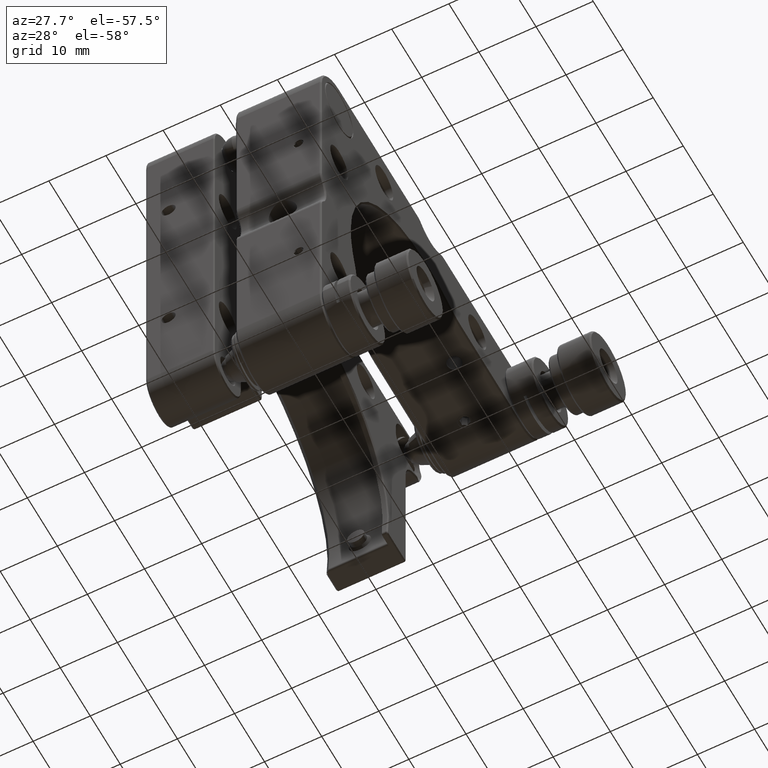
[diagram: clean part render]
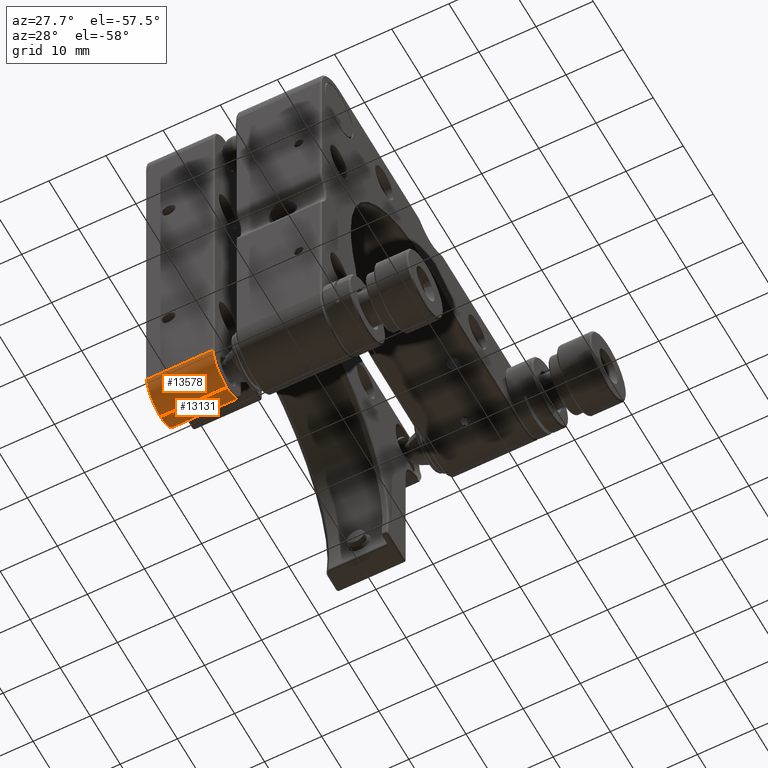
[diagram: same view with one multi-face feature highlighted, each face labeled with its STEP entity id]
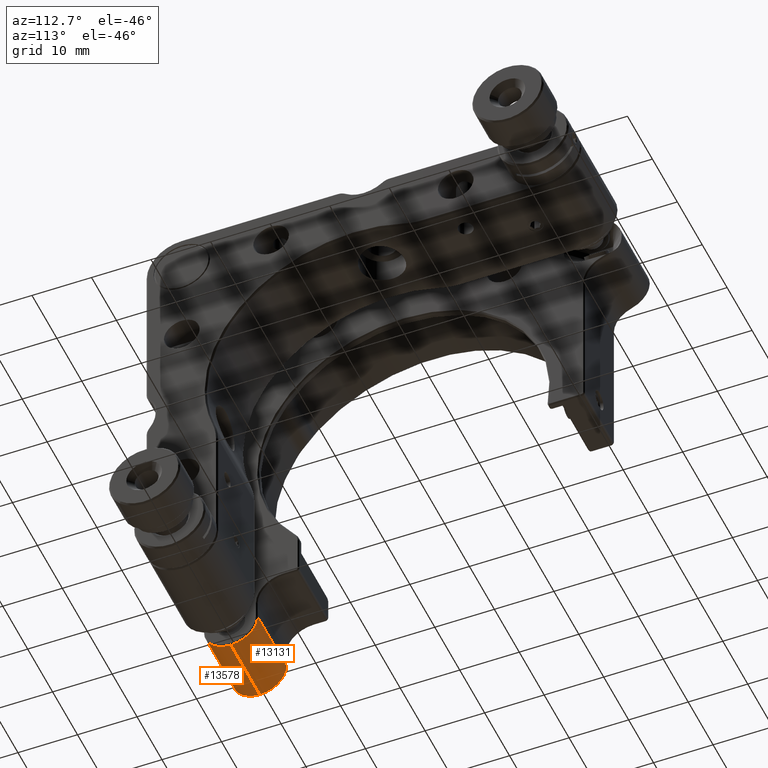
[diagram: same view with one multi-face feature highlighted, each face labeled with its STEP entity id]
A machine part, auxiliary view. The highlighted faces form ONE feature: a constant-radius fillet chain: 2 tangent blend faces with common blend radius 4.5 mm. The faces share edges in the B-rep.
A second angle (auxiliary view) of the same feature is appended — it is thin or edge-on in the first view.
Their STEP definitions:
[1] entity #13578 (Cylinder):
#245 = ORIENTED_EDGE ( 'NONE', *, *, #15132, .T. ) ;
#559 = ORIENTED_EDGE ( 'NONE', *, *, #12440, .T. ) ;
#671 = EDGE_LOOP ( 'NONE', ( #559, #5691, #245, #6888 ) ) ;
#1784 = CARTESIAN_POINT ( 'NONE',  ( -4.175619322914223552, -31.81707137695319432, -48.49999999999999289 ) ) ;
#1878 = DIRECTION ( 'NONE',  ( -1.000000000000000000, 0.000000000000000000, 0.000000000000000000 ) ) ;
#2489 = CIRCLE ( 'NONE', #13301, 4.499999999999997335 ) ;
#2893 = VERTEX_POINT ( 'NONE', #6276 ) ;
#3183 = CARTESIAN_POINT ( 'NONE',  ( -3.975619322914198506, -36.31707137695318721, -48.49999999999999289 ) ) ;
#3188 = AXIS2_PLACEMENT_3D ( 'NONE', #1784, #14888, #14663 ) ;
#3345 = LINE ( 'NONE', #3183, #6666 ) ;
#3696 = LINE ( 'NONE', #14193, #11894 ) ;
#5020 = CARTESIAN_POINT ( 'NONE',  ( -4.175619322914223552, -36.31707137695318721, -48.49999999999999289 ) ) ;
#5691 = ORIENTED_EDGE ( 'NONE', *, *, #12511, .F. ) ;
#5728 = VERTEX_POINT ( 'NONE', #8469 ) ;
#6276 = CARTESIAN_POINT ( 'NONE',  ( -15.77561932291418678, -36.31707137695318721, -48.49999999999999289 ) ) ;
#6476 = AXIS2_PLACEMENT_3D ( 'NONE', #12516, #1878, #11442 ) ;
#6666 = VECTOR ( 'NONE', #9044, 1000.000000000000000 ) ;
#6888 = ORIENTED_EDGE ( 'NONE', *, *, #11022, .F. ) ;
#8469 = CARTESIAN_POINT ( 'NONE',  ( -15.77561932291418678, -31.81707137695318721, -53.00000000000000000 ) ) ;
#9044 = DIRECTION ( 'NONE',  ( -1.000000000000000000, 0.000000000000000000, 0.000000000000000000 ) ) ;
#9813 = VERTEX_POINT ( 'NONE', #5020 ) ;
#10100 = VERTEX_POINT ( 'NONE', #10464 ) ;
#10129 = FACE_OUTER_BOUND ( 'NONE', #671, .T. ) ;
#10433 = DIRECTION ( 'NONE',  ( -1.000000000000000000, -0.000000000000000000, 0.000000000000000000 ) ) ;
#10464 = CARTESIAN_POINT ( 'NONE',  ( -4.175619322914223552, -31.81707137695318721, -53.00000000000000000 ) ) ;
#11022 = EDGE_CURVE ( 'NONE', #9813, #10100, #14021, .T. ) ;
#11442 = DIRECTION ( 'NONE',  ( 0.000000000000000000, 0.000000000000000000, -1.000000000000000000 ) ) ;
#11894 = VECTOR ( 'NONE', #13969, 1000.000000000000000 ) ;
#12440 = EDGE_CURVE ( 'NONE', #9813, #2893, #3345, .T. ) ;
#12444 = CYLINDRICAL_SURFACE ( 'NONE', #6476, 4.499999999999997335 ) ;
#12511 = EDGE_CURVE ( 'NONE', #5728, #2893, #2489, .T. ) ;
#12516 = CARTESIAN_POINT ( 'NONE',  ( -3.975619322914198506, -31.81707137695319432, -48.49999999999999289 ) ) ;
#12899 = CARTESIAN_POINT ( 'NONE',  ( -15.77561932291418678, -31.81707137695319432, -48.49999999999999289 ) ) ;
#13301 = AXIS2_PLACEMENT_3D ( 'NONE', #12899, #10433, #14053 ) ;
#13578 = ADVANCED_FACE ( 'NONE', ( #10129 ), #12444, .T. ) ;
#13969 = DIRECTION ( 'NONE',  ( 1.000000000000000000, -0.000000000000000000, -0.000000000000000000 ) ) ;
#14021 = CIRCLE ( 'NONE', #3188, 4.499999999999997335 ) ;
#14053 = DIRECTION ( 'NONE',  ( 0.000000000000000000, 0.000000000000000000, -1.000000000000000000 ) ) ;
#14193 = CARTESIAN_POINT ( 'NONE',  ( -3.975619322914198506, -31.81707137695318721, -53.00000000000000000 ) ) ;
#14663 = DIRECTION ( 'NONE',  ( 0.000000000000000000, 0.000000000000000000, -1.000000000000000000 ) ) ;
#14888 = DIRECTION ( 'NONE',  ( 1.000000000000000000, -0.000000000000000000, -0.000000000000000000 ) ) ;
#15132 = EDGE_CURVE ( 'NONE', #5728, #10100, #3696, .T. ) ;
[2] entity #13131 (Cylinder):
#118 = DIRECTION ( 'NONE',  ( 0.000000000000000000, 0.000000000000000000, -1.000000000000000000 ) ) ;
#778 = VECTOR ( 'NONE', #3158, 1000.000000000000000 ) ;
#979 = CYLINDRICAL_SURFACE ( 'NONE', #8911, 4.499999999999997335 ) ;
#1851 = CARTESIAN_POINT ( 'NONE',  ( -3.975619322914198506, -27.31707137695319076, -48.49999999999999289 ) ) ;
#2052 = FACE_OUTER_BOUND ( 'NONE', #6890, .T. ) ;
#2643 = VERTEX_POINT ( 'NONE', #7633 ) ;
#2805 = CIRCLE ( 'NONE', #4037, 4.499999999999997335 ) ;
#2964 = EDGE_CURVE ( 'NONE', #2643, #5728, #2805, .T. ) ;
#3158 = DIRECTION ( 'NONE',  ( 1.000000000000000000, -0.000000000000000000, -0.000000000000000000 ) ) ;
#3696 = LINE ( 'NONE', #14193, #11894 ) ;
#4037 = AXIS2_PLACEMENT_3D ( 'NONE', #5514, #8915, #9988 ) ;
#5004 = VERTEX_POINT ( 'NONE', #11139 ) ;
#5514 = CARTESIAN_POINT ( 'NONE',  ( -15.77561932291418678, -31.81707137695319432, -48.49999999999999289 ) ) ;
#5590 = CARTESIAN_POINT ( 'NONE',  ( -4.175619322914223552, -31.81707137695319432, -48.49999999999999289 ) ) ;
#5664 = CARTESIAN_POINT ( 'NONE',  ( -3.975619322914198506, -31.81707137695319432, -48.49999999999999289 ) ) ;
#5728 = VERTEX_POINT ( 'NONE', #8469 ) ;
#6146 = AXIS2_PLACEMENT_3D ( 'NONE', #5590, #8059, #118 ) ;
#6406 = ORIENTED_EDGE ( 'NONE', *, *, #12073, .F. ) ;
#6890 = EDGE_LOOP ( 'NONE', ( #15186, #12925, #13907, #6406 ) ) ;
#7633 = CARTESIAN_POINT ( 'NONE',  ( -15.77561932291418678, -27.31707137695319076, -48.49999999999999289 ) ) ;
#8059 = DIRECTION ( 'NONE',  ( 1.000000000000000000, -0.000000000000000000, -0.000000000000000000 ) ) ;
#8463 = EDGE_CURVE ( 'NONE', #2643, #5004, #12418, .T. ) ;
#8469 = CARTESIAN_POINT ( 'NONE',  ( -15.77561932291418678, -31.81707137695318721, -53.00000000000000000 ) ) ;
#8911 = AXIS2_PLACEMENT_3D ( 'NONE', #5664, #12691, #13854 ) ;
#8915 = DIRECTION ( 'NONE',  ( -1.000000000000000000, -0.000000000000000000, 0.000000000000000000 ) ) ;
#9988 = DIRECTION ( 'NONE',  ( 0.000000000000000000, -4.625929269271488478E-15, -1.000000000000000000 ) ) ;
#10100 = VERTEX_POINT ( 'NONE', #10464 ) ;
#10464 = CARTESIAN_POINT ( 'NONE',  ( -4.175619322914223552, -31.81707137695318721, -53.00000000000000000 ) ) ;
#11139 = CARTESIAN_POINT ( 'NONE',  ( -4.175619322914223552, -27.31707137695319076, -48.49999999999999289 ) ) ;
#11894 = VECTOR ( 'NONE', #13969, 1000.000000000000000 ) ;
#12073 = EDGE_CURVE ( 'NONE', #10100, #5004, #12804, .T. ) ;
#12418 = LINE ( 'NONE', #1851, #778 ) ;
#12691 = DIRECTION ( 'NONE',  ( -1.000000000000000000, 0.000000000000000000, 0.000000000000000000 ) ) ;
#12804 = CIRCLE ( 'NONE', #6146, 4.499999999999997335 ) ;
#12925 = ORIENTED_EDGE ( 'NONE', *, *, #2964, .F. ) ;
#13131 = ADVANCED_FACE ( 'NONE', ( #2052 ), #979, .T. ) ;
#13854 = DIRECTION ( 'NONE',  ( 0.000000000000000000, 0.000000000000000000, -1.000000000000000000 ) ) ;
#13907 = ORIENTED_EDGE ( 'NONE', *, *, #8463, .T. ) ;
#13969 = DIRECTION ( 'NONE',  ( 1.000000000000000000, -0.000000000000000000, -0.000000000000000000 ) ) ;
#14193 = CARTESIAN_POINT ( 'NONE',  ( -3.975619322914198506, -31.81707137695318721, -53.00000000000000000 ) ) ;
#15132 = EDGE_CURVE ( 'NONE', #5728, #10100, #3696, .T. ) ;
#15186 = ORIENTED_EDGE ( 'NONE', *, *, #15132, .F. ) ;